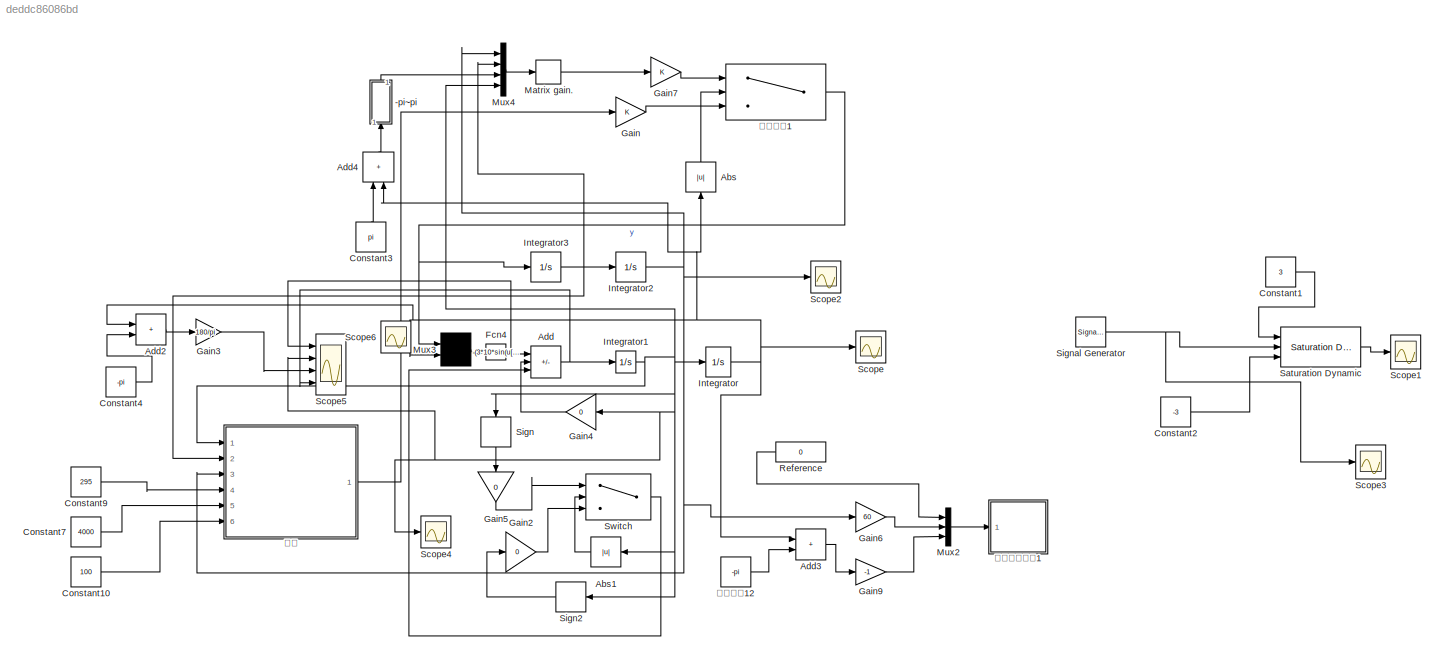
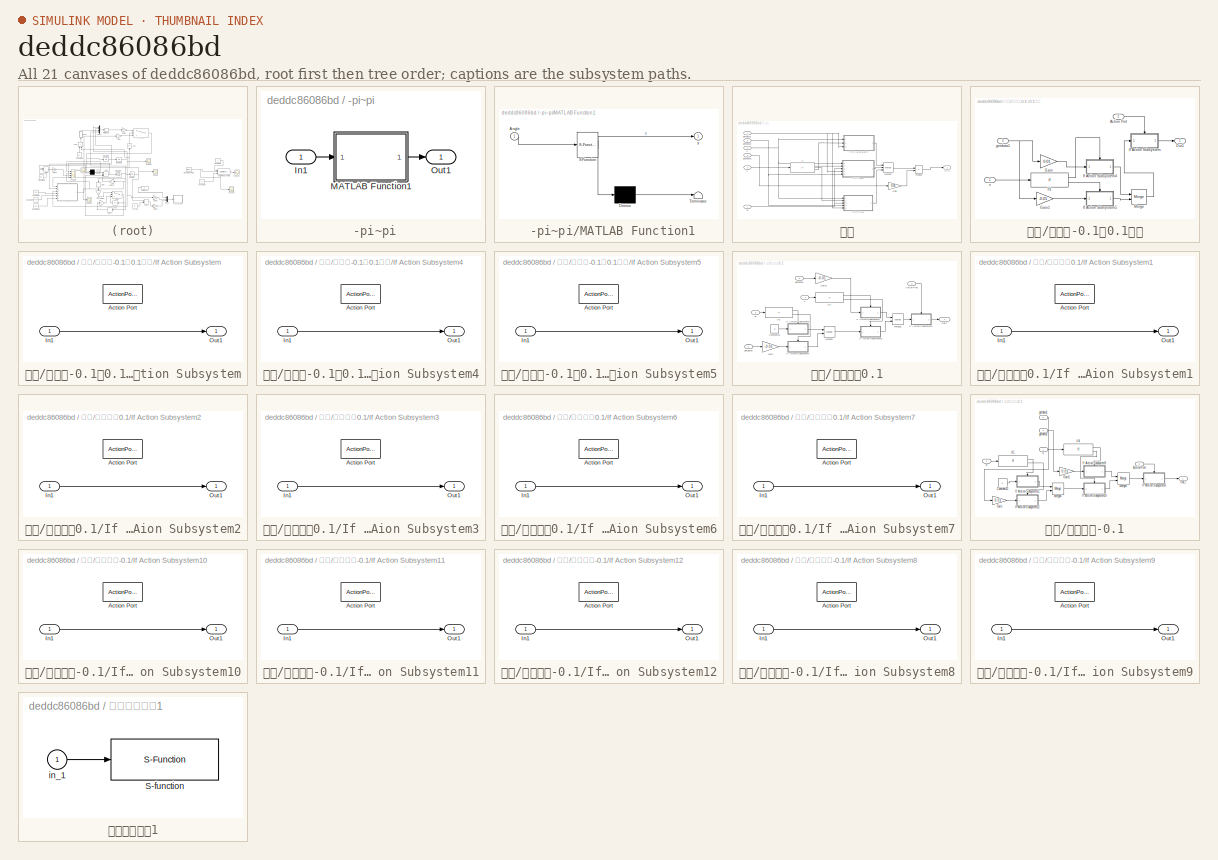
[diagram: thumbnail index - all 21 canvases of the model, root first then tree order]
MODEL slx_deddc86086bd
KIND model
CONFIG AbsTol = auto
CONFIG EnableMultiTasking = off
CONFIG FixedStep = 0.005
CONFIG MaxStep = auto
CONFIG MinStep = auto
CONFIG RelTol = 1e-3
CONFIG SampleTimeConstraint = Unconstrained
CONFIG SolverName = VariableStepAuto
CONFIG StartTime = 0.0
CONFIG StopTime = 30
BLOCK [SubSystem]  -pi~pi
  NameLocation = right
  Ports = [1, 1]
  RequestExecContextInheritance = off
BLOCK [Inport]  -pi~pi/In1
BLOCK [SubSystem]  -pi~pi/MATLAB Function1
  ErrorFcn = Stateflow.Translate.translate
  PermitHierarchicalResolution = ExplicitOnly
  Ports = [1, 1]
  RequestExecContextInheritance = off
  SFBlockType = MATLAB Function
  TreatAsAtomicUnit = on
BLOCK [Demux]  -pi~pi/MATLAB Function1/ Demux 
  Outputs = 1
  Ports = [1, 1]
BLOCK [S-Function]  -pi~pi/MATLAB Function1/ SFunction 
  EnableBusSupport = on
  FunctionName = sf_sfun
  PortCounts = [1 2]
  Ports = [1, 2]
  SFcnIsStateOwnerBlock = off
  SFunctionDeploymentMode = off
  Tag = Stateflow S-Function 3
BLOCK [Terminator]  -pi~pi/MATLAB Function1/ Terminator 
BLOCK [Inport]  -pi~pi/MATLAB Function1/Angle
BLOCK [Outport]  -pi~pi/MATLAB Function1/y
  VectorParamsAs1DForOutWhenUnconnected = off
BLOCK [Outport]  -pi~pi/Out1
  VectorParamsAs1DForOutWhenUnconnected = off
BLOCK [Abs] Abs
  NameLocation = right
  SaturateOnIntegerOverflow = off
BLOCK [Abs] Abs1
  SaturateOnIntegerOverflow = off
BLOCK [Sum] Add
  IconShape = rectangular
  Inputs = +-+
  Ports = [3, 1]
BLOCK [Sum] Add2
  IconShape = rectangular
  Ports = [2, 1]
BLOCK [Sum] Add3
  IconShape = rectangular
  Ports = [2, 1]
BLOCK [Sum] Add4
  IconShape = rectangular
  NameLocation = right
  Ports = [2, 1]
BLOCK [Constant] Constant1
  Commented = on
  Value = 3
BLOCK [Constant] Constant10
  Value = 100
BLOCK [Constant] Constant2
  Commented = on
  Value = -3
BLOCK [Constant] Constant3
  NameLocation = right
  Value = pi
BLOCK [Constant] Constant4
  Value = -pi
BLOCK [Constant] Constant7
  Value = 4000
BLOCK [Constant] Constant9
  Value = 295
BLOCK [Fcn] Fcn4
  Expr = -(3*10*sin(u[2]))/(4*0.173)-(3*cos(u[2])*u[1])/(4*0.173)
BLOCK [Gain] Gain
BLOCK [Gain] Gain2
  Gain = 0
BLOCK [Gain] Gain3
  Gain = 180/pi
BLOCK [Gain] Gain4
  Gain = 0
  NameLocation = top
BLOCK [Gain] Gain5
  Gain = 0
  NameLocation = left
BLOCK [Gain] Gain6
  Gain = 60
BLOCK [Gain] Gain7
BLOCK [Gain] Gain9
  Gain = -1
BLOCK [Integrator] Integrator
  Ports = [1, 1]
BLOCK [Integrator] Integrator1
  Ports = [1, 1]
BLOCK [Integrator] Integrator2
  Ports = [1, 1]
BLOCK [Integrator] Integrator3
  Ports = [1, 1]
BLOCK [StateSpace] Matrix gain.
  A = []
  B = []
  C = []
  D = K
  InitialCondition = 0
  NameLocation = top
  Ports = [1, 1]
BLOCK [Mux] Mux2
  DisplayOption = bar
  Inputs = 3
  Ports = [3, 1]
BLOCK [Mux] Mux3
  Inputs = 2
  Ports = [2, 1]
BLOCK [Mux] Mux4
  DisplayOption = bar
  NameLocation = top
  Ports = [4, 1]
BLOCK [Constant] Reference
  NameLocation = top
  Value = 0
BLOCK [Reference] Saturation Dynamic  REF=simulink/Discontinuities/Saturation
Dynamic
  Commented = on
  Ports = [3, 1]
  SourceBlock = simulink/Discontinuities/Saturation\nDynamic
  SourceProductBaseCode = SL
  SourceType = Saturation Dynamic
BLOCK [Scope] Scope
  Floating = off
  NumInputPorts = 1
  Ports = [1]
  ScopeSpecificationString = Simulink.scopes.TimeScopeBlockCfg('CurrentConfiguration', extmgr.ConfigurationSet(extmgr.Configuration('Core','General UI',true),extmgr.Configuration('Core','Source UI',true),extmgr.Configuration('Sources','WiredSimulink',true,'DataLoggingVariableName','ScopeData1'),extmgr.Configuration('Visuals','Time Domain',true,'SerializedDisplays',{struct('MinYLimReal','3.0516','MaxYLimReal','3.22242','YLabel...<+1449ch>
BLOCK [Scope] Scope1
  Commented = on
  Floating = off
  NumInputPorts = 1
  Ports = [1]
  ScopeSpecificationString = Simulink.scopes.TimeScopeBlockCfg('CurrentConfiguration', extmgr.ConfigurationSet(extmgr.Configuration('Core','General UI',true),extmgr.Configuration('Core','Source UI',true),extmgr.Configuration('Sources','WiredSimulink',true,'DataLoggingVariableName','ScopeData1'),extmgr.Configuration('Visuals','Time Domain',true,'SerializedDisplays',{struct('MinYLimReal','-3.75','MaxYLimReal','3.75','YLabelReal...<+1415ch>
BLOCK [Scope] Scope2
  Floating = off
  NumInputPorts = 1
  Ports = [1]
  ScopeSpecificationString = Simulink.scopes.TimeScopeBlockCfg('CurrentConfiguration', extmgr.ConfigurationSet(extmgr.Configuration('Core','General UI',true),extmgr.Configuration('Core','Source UI',true),extmgr.Configuration('Sources','WiredSimulink',true,'DataLoggingVariableName','ScopeData2'),extmgr.Configuration('Visuals','Time Domain',true,'SerializedDisplays',{struct('MinYLimReal','-0.40285','MaxYLimReal','0.47548','YLab...<+1436ch>
BLOCK [Scope] Scope3
  Commented = on
  Floating = off
  NumInputPorts = 1
  Ports = [1]
  ScopeSpecificationString = Simulink.scopes.TimeScopeBlockCfg('CurrentConfiguration', extmgr.ConfigurationSet(extmgr.Configuration('Core','General UI',true),extmgr.Configuration('Core','Source UI',true),extmgr.Configuration('Sources','WiredSimulink',true,'DataLoggingVariableName','ScopeData2'),extmgr.Configuration('Visuals','Time Domain',true,'SerializedDisplays',{struct('MinYLimReal','-12.5','MaxYLimReal','12.5','YLabelReal...<+1415ch>
BLOCK [Scope] Scope4
  Floating = off
  NumInputPorts = 1
  Ports = [1]
  ScopeSpecificationString = Simulink.scopes.TimeScopeBlockCfg('CurrentConfiguration', extmgr.ConfigurationSet(extmgr.Configuration('Core','General UI',true),extmgr.Configuration('Core','Source UI',true),extmgr.Configuration('Sources','WiredSimulink',true,'DataLoggingVariableName','ScopeData3'),extmgr.Configuration('Visuals','Time Domain',true,'SerializedDisplays',{struct('MinYLimReal','-0.09516','MaxYLimReal','0.12404','YLab...<+1432ch>
BLOCK [Scope] Scope5
  Floating = off
  NumInputPorts = 4
  Ports = [4]
  ScopeSpecificationString = Simulink.scopes.TimeScopeBlockCfg('CurrentConfiguration', extmgr.ConfigurationSet(extmgr.Configuration('Core','General UI',true),extmgr.Configuration('Core','Source UI',true),extmgr.Configuration('Sources','WiredSimulink',true,'DataLoggingVariableName','ScopeData4'),extmgr.Configuration('Visuals','Time Domain',true,'SerializedDisplays',{struct('MinYLimReal','-440.74119','MaxYLimReal','248.28812','...<+1581ch>
BLOCK [Scope] Scope6
  Floating = off
  NumInputPorts = 1
  Ports = [1]
  ScopeSpecificationString = Simulink.scopes.TimeScopeBlockCfg('CurrentConfiguration', extmgr.ConfigurationSet(extmgr.Configuration('Core','General UI',true),extmgr.Configuration('Core','Source UI',true),extmgr.Configuration('Sources','WiredSimulink',true,'DataLoggingVariableName','ScopeData5'),extmgr.Configuration('Visuals','Time Domain',true),extmgr.Configuration('Tools','Plot Navigation',true),extmgr.Configuration('Tools',...<+40ch>
BLOCK [Signum] Sign
  NameLocation = left
BLOCK [Signum] Sign2
  NameLocation = top
BLOCK [SignalGenerator] Signal Generator
  Amplitude = 10
  Commented = on
  Ports = [0, 1]
  Units = rad/sec
BLOCK [Switch] Switch
  Criteria = u2 > Threshold
  InputSameDT = off
  SaturateOnIntegerOverflow = off
  Threshold = 0.05
BLOCK [Constant] 增益系数12
  Value = -pi
BLOCK [SubSystem] 控制
  Ports = [6, 1]
  RequestExecContextInheritance = off
BLOCK [Gain] 控制/Gain
  Gain = 0.01
BLOCK [If] 控制/If
  ElseIfExpressions = u1<=-0.1
  IfExpression = u1>=0.1
  Ports = [1, 3]
BLOCK [Merge] 控制/Merge3
  Inputs = 3
  Ports = [3, 1]
BLOCK [Product] 控制/Product
  Ports = [2, 1]
BLOCK [Inport] 控制/getdata1
  NameLocation = top
  Port = 4
BLOCK [Inport] 控制/getdata2
  NameLocation = top
  Port = 5
BLOCK [Inport] 控制/getdata5
  NameLocation = top
  Port = 6
BLOCK [Inport] 控制/v
  NameLocation = top
  Port = 2
BLOCK [Inport] 控制/w
BLOCK [Inport] 控制/x
  NameLocation = top
  Port = 3
BLOCK [SubSystem] 控制/位移在-0.1至0.1之间
  Ports = [3, 1]
  RequestExecContextInheritance = off
BLOCK [Inport] 控制/位移在-0.1至0.1之间/Action Port
  Port = 2
BLOCK [Gain] 控制/位移在-0.1至0.1之间/Gain
  Gain = 0.01
BLOCK [Gain] 控制/位移在-0.1至0.1之间/Gain1
  Gain = -0.01
BLOCK [SubSystem] 控制/位移在-0.1至0.1之间/If Action Subsystem
  Ports = [1, 1, 0, 0, 0, 0, 0, 1]
  RequestExecContextInheritance = off
  TreatAsAtomicUnit = on
BLOCK [ActionPort] 控制/位移在-0.1至0.1之间/If Action Subsystem/Action Port
  ActionPortLabel = else
BLOCK [Inport] 控制/位移在-0.1至0.1之间/If Action Subsystem/In1
BLOCK [Outport] 控制/位移在-0.1至0.1之间/If Action Subsystem/Out1
BLOCK [SubSystem] 控制/位移在-0.1至0.1之间/If Action Subsystem4
  Ports = [1, 1, 0, 0, 0, 0, 0, 1]
  RequestExecContextInheritance = off
  TreatAsAtomicUnit = on
BLOCK [ActionPort] 控制/位移在-0.1至0.1之间/If Action Subsystem4/Action Port
  ActionPortLabel = if(u1 >=0)
BLOCK [Inport] 控制/位移在-0.1至0.1之间/If Action Subsystem4/In1
BLOCK [Outport] 控制/位移在-0.1至0.1之间/If Action Subsystem4/Out1
BLOCK [SubSystem] 控制/位移在-0.1至0.1之间/If Action Subsystem5
  Ports = [1, 1, 0, 0, 0, 0, 0, 1]
  RequestExecContextInheritance = off
  TreatAsAtomicUnit = on
BLOCK [ActionPort] 控制/位移在-0.1至0.1之间/If Action Subsystem5/Action Port
  ActionPortLabel = else
BLOCK [Inport] 控制/位移在-0.1至0.1之间/If Action Subsystem5/In1
BLOCK [Outport] 控制/位移在-0.1至0.1之间/If Action Subsystem5/Out1
BLOCK [If] 控制/位移在-0.1至0.1之间/If1
  IfExpression = u1 >=0
  Ports = [1, 2]
BLOCK [Merge] 控制/位移在-0.1至0.1之间/Merge
  Ports = [2, 1]
BLOCK [Outport] 控制/位移在-0.1至0.1之间/Out1
BLOCK [Inport] 控制/位移在-0.1至0.1之间/getdata1
  NameLocation = top
  Port = 3
BLOCK [Inport] 控制/位移在-0.1至0.1之间/v
  NameLocation = top
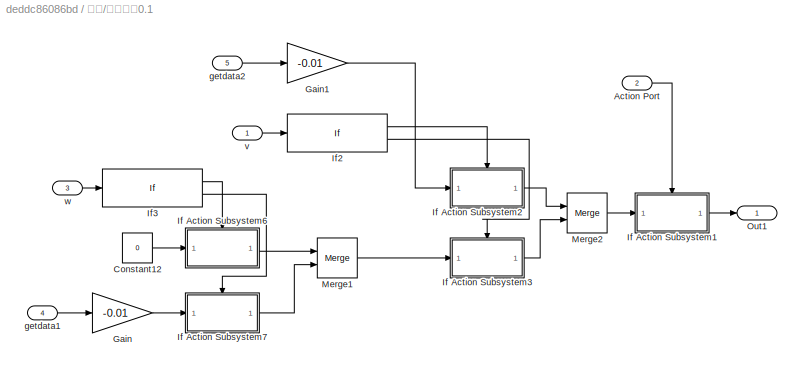
BLOCK [SubSystem] 控制/位移大于0.1
  Ports = [5, 1]
  RequestExecContextInheritance = off
BLOCK [Inport] 控制/位移大于0.1/Action Port
  Port = 2
BLOCK [Constant] 控制/位移大于0.1/Constant12
  Value = 0
BLOCK [Gain] 控制/位移大于0.1/Gain
  Gain = -0.01
BLOCK [Gain] 控制/位移大于0.1/Gain1
  Gain = -0.01
BLOCK [SubSystem] 控制/位移大于0.1/If Action Subsystem1
  Ports = [1, 1, 0, 0, 0, 0, 0, 1]
  RequestExecContextInheritance = off
  TreatAsAtomicUnit = on
BLOCK [ActionPort] 控制/位移大于0.1/If Action Subsystem1/Action Port
  ActionPortLabel = if(u1>=0.1)
BLOCK [Inport] 控制/位移大于0.1/If Action Subsystem1/In1
BLOCK [Outport] 控制/位移大于0.1/If Action Subsystem1/Out1
BLOCK [SubSystem] 控制/位移大于0.1/If Action Subsystem2
  Ports = [1, 1, 0, 0, 0, 0, 0, 1]
  RequestExecContextInheritance = off
  TreatAsAtomicUnit = on
BLOCK [ActionPort] 控制/位移大于0.1/If Action Subsystem2/Action Port
  ActionPortLabel = if(u1 >=0)
BLOCK [Inport] 控制/位移大于0.1/If Action Subsystem2/In1
BLOCK [Outport] 控制/位移大于0.1/If Action Subsystem2/Out1
BLOCK [SubSystem] 控制/位移大于0.1/If Action Subsystem3
  Ports = [1, 1, 0, 0, 0, 0, 0, 1]
  RequestExecContextInheritance = off
  TreatAsAtomicUnit = on
BLOCK [ActionPort] 控制/位移大于0.1/If Action Subsystem3/Action Port
  ActionPortLabel = else
BLOCK [Inport] 控制/位移大于0.1/If Action Subsystem3/In1
BLOCK [Outport] 控制/位移大于0.1/If Action Subsystem3/Out1
BLOCK [SubSystem] 控制/位移大于0.1/If Action Subsystem6
  Ports = [1, 1, 0, 0, 0, 0, 0, 1]
  RequestExecContextInheritance = off
  TreatAsAtomicUnit = on
BLOCK [ActionPort] 控制/位移大于0.1/If Action Subsystem6/Action Port
  ActionPortLabel = if(u1 > 0)
BLOCK [Inport] 控制/位移大于0.1/If Action Subsystem6/In1
BLOCK [Outport] 控制/位移大于0.1/If Action Subsystem6/Out1
BLOCK [SubSystem] 控制/位移大于0.1/If Action Subsystem7
  Ports = [1, 1, 0, 0, 0, 0, 0, 1]
  RequestExecContextInheritance = off
  TreatAsAtomicUnit = on
BLOCK [ActionPort] 控制/位移大于0.1/If Action Subsystem7/Action Port
  ActionPortLabel = else
BLOCK [Inport] 控制/位移大于0.1/If Action Subsystem7/In1
BLOCK [Outport] 控制/位移大于0.1/If Action Subsystem7/Out1
BLOCK [If] 控制/位移大于0.1/If2
  IfExpression = u1 >=0
  Ports = [1, 2]
BLOCK [If] 控制/位移大于0.1/If3
  Ports = [1, 2]
BLOCK [Merge] 控制/位移大于0.1/Merge1
  Ports = [2, 1]
BLOCK [Merge] 控制/位移大于0.1/Merge2
  Ports = [2, 1]
BLOCK [Outport] 控制/位移大于0.1/Out1
BLOCK [Inport] 控制/位移大于0.1/getdata1
  Port = 4
BLOCK [Inport] 控制/位移大于0.1/getdata2
  Port = 5
BLOCK [Inport] 控制/位移大于0.1/v
BLOCK [Inport] 控制/位移大于0.1/w
  Port = 3
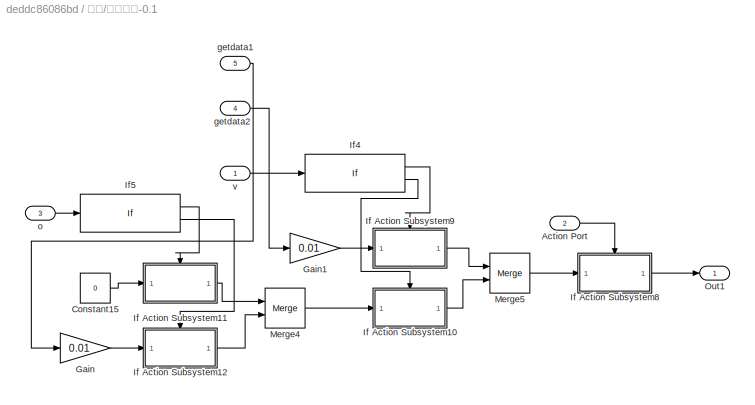
BLOCK [SubSystem] 控制/位移小于-0.1
  Ports = [5, 1]
  RequestExecContextInheritance = off
BLOCK [Inport] 控制/位移小于-0.1/Action Port
  Port = 2
BLOCK [Constant] 控制/位移小于-0.1/Constant15
  Value = 0
BLOCK [Gain] 控制/位移小于-0.1/Gain
  Gain = 0.01
BLOCK [Gain] 控制/位移小于-0.1/Gain1
  Gain = 0.01
BLOCK [SubSystem] 控制/位移小于-0.1/If Action Subsystem10
  Ports = [1, 1, 0, 0, 0, 0, 0, 1]
  RequestExecContextInheritance = off
  TreatAsAtomicUnit = on
BLOCK [ActionPort] 控制/位移小于-0.1/If Action Subsystem10/Action Port
  ActionPortLabel = else
BLOCK [Inport] 控制/位移小于-0.1/If Action Subsystem10/In1
BLOCK [Outport] 控制/位移小于-0.1/If Action Subsystem10/Out1
BLOCK [SubSystem] 控制/位移小于-0.1/If Action Subsystem11
  Ports = [1, 1, 0, 0, 0, 0, 0, 1]
  RequestExecContextInheritance = off
  TreatAsAtomicUnit = on
BLOCK [ActionPort] 控制/位移小于-0.1/If Action Subsystem11/Action Port
  ActionPortLabel = if(u1 <0)
BLOCK [Inport] 控制/位移小于-0.1/If Action Subsystem11/In1
BLOCK [Outport] 控制/位移小于-0.1/If Action Subsystem11/Out1
BLOCK [SubSystem] 控制/位移小于-0.1/If Action Subsystem12
  Ports = [1, 1, 0, 0, 0, 0, 0, 1]
  RequestExecContextInheritance = off
  TreatAsAtomicUnit = on
BLOCK [ActionPort] 控制/位移小于-0.1/If Action Subsystem12/Action Port
  ActionPortLabel = else
BLOCK [Inport] 控制/位移小于-0.1/If Action Subsystem12/In1
BLOCK [Outport] 控制/位移小于-0.1/If Action Subsystem12/Out1
BLOCK [SubSystem] 控制/位移小于-0.1/If Action Subsystem8
  Ports = [1, 1, 0, 0, 0, 0, 0, 1]
  RequestExecContextInheritance = off
  TreatAsAtomicUnit = on
BLOCK [ActionPort] 控制/位移小于-0.1/If Action Subsystem8/Action Port
  ActionPortLabel = elseif(u1<=-0.1)
BLOCK [Inport] 控制/位移小于-0.1/If Action Subsystem8/In1
BLOCK [Outport] 控制/位移小于-0.1/If Action Subsystem8/Out1
BLOCK [SubSystem] 控制/位移小于-0.1/If Action Subsystem9
  Ports = [1, 1, 0, 0, 0, 0, 0, 1]
  RequestExecContextInheritance = off
  TreatAsAtomicUnit = on
BLOCK [ActionPort] 控制/位移小于-0.1/If Action Subsystem9/Action Port
  ActionPortLabel = if(u1 <=0)
BLOCK [Inport] 控制/位移小于-0.1/If Action Subsystem9/In1
BLOCK [Outport] 控制/位移小于-0.1/If Action Subsystem9/Out1
BLOCK [If] 控制/位移小于-0.1/If4
  IfExpression = u1 <=0
  Ports = [1, 2]
BLOCK [If] 控制/位移小于-0.1/If5
  IfExpression = u1 <0
  Ports = [1, 2]
BLOCK [Merge] 控制/位移小于-0.1/Merge4
  Ports = [2, 1]
BLOCK [Merge] 控制/位移小于-0.1/Merge5
  Ports = [2, 1]
BLOCK [Outport] 控制/位移小于-0.1/Out1
BLOCK [Inport] 控制/位移小于-0.1/getdata1
  Port = 5
BLOCK [Inport] 控制/位移小于-0.1/getdata2
  Port = 4
BLOCK [Inport] 控制/位移小于-0.1/o
  Port = 3
BLOCK [Inport] 控制/位移小于-0.1/v
BLOCK [Outport] 控制/加速度
BLOCK [SubSystem] 物理模型动画1
  Ports = [1]
  RequestExecContextInheritance = off
BLOCK [S-Function] 物理模型动画1/S-function
  DeleteFcn = pendan([],[],[],'DeleteBlock');
  EnableBusSupport = off
  FunctionName = UpPendAnim
  Parameters = RefBlock
  Ports = [1]
  SFcnIsStateOwnerBlock = off
  SFunctionDeploymentMode = off
BLOCK [Inport] 物理模型动画1/in_1
BLOCK [Switch] 起摆切换1
  InputSameDT = off
  SaturateOnIntegerOverflow = off
  Threshold = 2.5
LINE  -pi~pi/In1:1 ->  -pi~pi/MATLAB Function1:1
LINE  -pi~pi/MATLAB Function1:1 ->  -pi~pi/Out1:1
LINE  -pi~pi:1 -> Mux4:3
LINE Abs1:1 -> Switch:2
LINE Abs:1 -> 起摆切换1:2
LINE Add2:1 -> Gain3:1
LINE Add3:1 -> Gain9:1
LINE Add4:1 ->  -pi~pi:1
NET Add:1 -> Integrator1:1, Scope5:4
LINE Constant10:1 -> 控制:6
LINE Constant1:1 -> Saturation Dynamic:1
LINE Constant2:1 -> Saturation Dynamic:3
LINE Constant3:1 -> Add4:1
LINE Constant4:1 -> Add2:2
LINE Constant7:1 -> 控制:5
LINE Constant9:1 -> 控制:4
NET Fcn4:1 -> Add:1, Scope5:1
LINE Gain2:1 -> Switch:3
LINE Gain3:1 -> Scope5:3
LINE Gain4:1 -> Add:2
LINE Gain5:1 -> Switch:1
LINE Gain6:1 -> Mux2:2
LINE Gain7:1 -> 起摆切换1:1
LINE Gain9:1 -> Mux2:3
LINE Gain:1 -> 起摆切换1:3
NET Integrator1:1 -> Abs1:1, Gain4:1, Integrator:1, Mux4:4, Scope4:1, Scope5:2, Sign2:1, Sign:1, 控制:1
NET Integrator2:1 -> Gain6:1, Mux4:1, Scope2:1, 控制:3
NET Integrator3:1 -> Integrator2:1, Mux4:2, 控制:2
NET Integrator:1 -> Abs:1, Add2:1, Add3:1, Add4:2, Mux3:2, Scope:1
LINE Matrix gain.:1 -> Gain7:1
LINE Mux2:1 -> 物理模型动画1:1
LINE Mux3:1 -> Fcn4:1
LINE Mux4:1 -> Matrix gain.:1
LINE Reference:1 -> Mux2:1
LINE Saturation Dynamic:1 -> Scope1:1
LINE Sign2:1 -> Gain2:1
LINE Sign:1 -> Gain5:1
NET Signal Generator:1 -> Saturation Dynamic:2, Scope3:1
LINE Switch:1 -> Add:3
LINE 增益系数12:1 -> Add3:2
LINE 控制/Gain:1 -> 控制/Product:2
LINE 控制/If:1 -> 控制/位移大于0.1:2
LINE 控制/If:2 -> 控制/位移小于-0.1:2
LINE 控制/If:3 -> 控制/位移在-0.1至0.1之间:2
LINE 控制/Merge3:1 -> 控制/Product:1
LINE 控制/Product:1 -> 控制/加速度:1
NET 控制/getdata1:1 -> 控制/位移在-0.1至0.1之间:3, 控制/位移大于0.1:4, 控制/位移小于-0.1:5
NET 控制/getdata2:1 -> 控制/位移大于0.1:5, 控制/位移小于-0.1:4
LINE 控制/getdata5:1 -> 控制/Gain:1
NET 控制/v:1 -> 控制/位移在-0.1至0.1之间:1, 控制/位移大于0.1:1, 控制/位移小于-0.1:1
NET 控制/w:1 -> 控制/位移大于0.1:3, 控制/位移小于-0.1:3
LINE 控制/x:1 -> 控制/If:1
LINE 控制/位移在-0.1至0.1之间/Action Port:1 -> 控制/位移在-0.1至0.1之间/If Action Subsystem:ifaction
LINE 控制/位移在-0.1至0.1之间/Gain1:1 -> 控制/位移在-0.1至0.1之间/If Action Subsystem5:1
LINE 控制/位移在-0.1至0.1之间/Gain:1 -> 控制/位移在-0.1至0.1之间/If Action Subsystem4:1
LINE 控制/位移在-0.1至0.1之间/If Action Subsystem/In1:1 -> 控制/位移在-0.1至0.1之间/If Action Subsystem/Out1:1
LINE 控制/位移在-0.1至0.1之间/If Action Subsystem4/In1:1 -> 控制/位移在-0.1至0.1之间/If Action Subsystem4/Out1:1
LINE 控制/位移在-0.1至0.1之间/If Action Subsystem4:1 -> 控制/位移在-0.1至0.1之间/Merge:1
LINE 控制/位移在-0.1至0.1之间/If Action Subsystem5/In1:1 -> 控制/位移在-0.1至0.1之间/If Action Subsystem5/Out1:1
LINE 控制/位移在-0.1至0.1之间/If Action Subsystem5:1 -> 控制/位移在-0.1至0.1之间/Merge:2
LINE 控制/位移在-0.1至0.1之间/If Action Subsystem:1 -> 控制/位移在-0.1至0.1之间/Out1:1
LINE 控制/位移在-0.1至0.1之间/If1:1 -> 控制/位移在-0.1至0.1之间/If Action Subsystem4:ifaction
LINE 控制/位移在-0.1至0.1之间/If1:2 -> 控制/位移在-0.1至0.1之间/If Action Subsystem5:ifaction
LINE 控制/位移在-0.1至0.1之间/Merge:1 -> 控制/位移在-0.1至0.1之间/If Action Subsystem:1
NET 控制/位移在-0.1至0.1之间/getdata1:1 -> 控制/位移在-0.1至0.1之间/Gain1:1, 控制/位移在-0.1至0.1之间/Gain:1
LINE 控制/位移在-0.1至0.1之间/v:1 -> 控制/位移在-0.1至0.1之间/If1:1
LINE 控制/位移在-0.1至0.1之间:1 -> 控制/Merge3:1
LINE 控制/位移大于0.1/Action Port:1 -> 控制/位移大于0.1/If Action Subsystem1:ifaction
LINE 控制/位移大于0.1/Constant12:1 -> 控制/位移大于0.1/If Action Subsystem6:1
LINE 控制/位移大于0.1/Gain1:1 -> 控制/位移大于0.1/If Action Subsystem2:1
LINE 控制/位移大于0.1/Gain:1 -> 控制/位移大于0.1/If Action Subsystem7:1
LINE 控制/位移大于0.1/If Action Subsystem1/In1:1 -> 控制/位移大于0.1/If Action Subsystem1/Out1:1
LINE 控制/位移大于0.1/If Action Subsystem1:1 -> 控制/位移大于0.1/Out1:1
LINE 控制/位移大于0.1/If Action Subsystem2/In1:1 -> 控制/位移大于0.1/If Action Subsystem2/Out1:1
LINE 控制/位移大于0.1/If Action Subsystem2:1 -> 控制/位移大于0.1/Merge2:1
LINE 控制/位移大于0.1/If Action Subsystem3/In1:1 -> 控制/位移大于0.1/If Action Subsystem3/Out1:1
LINE 控制/位移大于0.1/If Action Subsystem3:1 -> 控制/位移大于0.1/Merge2:2
LINE 控制/位移大于0.1/If Action Subsystem6/In1:1 -> 控制/位移大于0.1/If Action Subsystem6/Out1:1
LINE 控制/位移大于0.1/If Action Subsystem6:1 -> 控制/位移大于0.1/Merge1:1
LINE 控制/位移大于0.1/If Action Subsystem7/In1:1 -> 控制/位移大于0.1/If Action Subsystem7/Out1:1
LINE 控制/位移大于0.1/If Action Subsystem7:1 -> 控制/位移大于0.1/Merge1:2
LINE 控制/位移大于0.1/If2:1 -> 控制/位移大于0.1/If Action Subsystem2:ifaction
LINE 控制/位移大于0.1/If2:2 -> 控制/位移大于0.1/If Action Subsystem3:ifaction
LINE 控制/位移大于0.1/If3:1 -> 控制/位移大于0.1/If Action Subsystem6:ifaction
LINE 控制/位移大于0.1/If3:2 -> 控制/位移大于0.1/If Action Subsystem7:ifaction
LINE 控制/位移大于0.1/Merge1:1 -> 控制/位移大于0.1/If Action Subsystem3:1
LINE 控制/位移大于0.1/Merge2:1 -> 控制/位移大于0.1/If Action Subsystem1:1
LINE 控制/位移大于0.1/getdata1:1 -> 控制/位移大于0.1/Gain:1
LINE 控制/位移大于0.1/getdata2:1 -> 控制/位移大于0.1/Gain1:1
LINE 控制/位移大于0.1/v:1 -> 控制/位移大于0.1/If2:1
LINE 控制/位移大于0.1/w:1 -> 控制/位移大于0.1/If3:1
LINE 控制/位移大于0.1:1 -> 控制/Merge3:2
LINE 控制/位移小于-0.1/Action Port:1 -> 控制/位移小于-0.1/If Action Subsystem8:ifaction
LINE 控制/位移小于-0.1/Constant15:1 -> 控制/位移小于-0.1/If Action Subsystem11:1
LINE 控制/位移小于-0.1/Gain1:1 -> 控制/位移小于-0.1/If Action Subsystem9:1
LINE 控制/位移小于-0.1/Gain:1 -> 控制/位移小于-0.1/If Action Subsystem12:1
LINE 控制/位移小于-0.1/If Action Subsystem10/In1:1 -> 控制/位移小于-0.1/If Action Subsystem10/Out1:1
LINE 控制/位移小于-0.1/If Action Subsystem10:1 -> 控制/位移小于-0.1/Merge5:2
LINE 控制/位移小于-0.1/If Action Subsystem11/In1:1 -> 控制/位移小于-0.1/If Action Subsystem11/Out1:1
LINE 控制/位移小于-0.1/If Action Subsystem11:1 -> 控制/位移小于-0.1/Merge4:1
LINE 控制/位移小于-0.1/If Action Subsystem12/In1:1 -> 控制/位移小于-0.1/If Action Subsystem12/Out1:1
LINE 控制/位移小于-0.1/If Action Subsystem12:1 -> 控制/位移小于-0.1/Merge4:2
LINE 控制/位移小于-0.1/If Action Subsystem8/In1:1 -> 控制/位移小于-0.1/If Action Subsystem8/Out1:1
LINE 控制/位移小于-0.1/If Action Subsystem8:1 -> 控制/位移小于-0.1/Out1:1
LINE 控制/位移小于-0.1/If Action Subsystem9/In1:1 -> 控制/位移小于-0.1/If Action Subsystem9/Out1:1
LINE 控制/位移小于-0.1/If Action Subsystem9:1 -> 控制/位移小于-0.1/Merge5:1
LINE 控制/位移小于-0.1/If4:1 -> 控制/位移小于-0.1/If Action Subsystem9:ifaction
LINE 控制/位移小于-0.1/If4:2 -> 控制/位移小于-0.1/If Action Subsystem10:ifaction
LINE 控制/位移小于-0.1/If5:1 -> 控制/位移小于-0.1/If Action Subsystem11:ifaction
LINE 控制/位移小于-0.1/If5:2 -> 控制/位移小于-0.1/If Action Subsystem12:ifaction
LINE 控制/位移小于-0.1/Merge4:1 -> 控制/位移小于-0.1/If Action Subsystem10:1
LINE 控制/位移小于-0.1/Merge5:1 -> 控制/位移小于-0.1/If Action Subsystem8:1
LINE 控制/位移小于-0.1/getdata1:1 -> 控制/位移小于-0.1/Gain:1
LINE 控制/位移小于-0.1/getdata2:1 -> 控制/位移小于-0.1/Gain1:1
LINE 控制/位移小于-0.1/o:1 -> 控制/位移小于-0.1/If5:1
LINE 控制/位移小于-0.1/v:1 -> 控制/位移小于-0.1/If4:1
LINE 控制/位移小于-0.1:1 -> 控制/Merge3:3
LINE 控制:1 -> Gain:1
LINE 物理模型动画1/in_1:1 -> 物理模型动画1/S-function:1
NET 起摆切换1:1 -> Integrator3:1, Mux3:1
note: NET lines group one-source signal fan-out (src -> all destinations, sorted); 1:1 wires keep LINE
CHART  -pi~pi/MATLAB Function1 states=1 transitions=1
  STATE_LABEL 'eML_blk_kernel()'
  STATE_LABEL 'SCRIPT:\nfunction y = Change(Angle)\n%#codegen\n    y=0;\n    while ( Angle > pi) \n        Angle = Angle-2 * pi;\n    end\n    while (Angle <= -pi) \n        Angle = Angle+2 * pi;\n    end \n    y=Angle+y;\nend\n'
CHART  states=0 transitions=0
